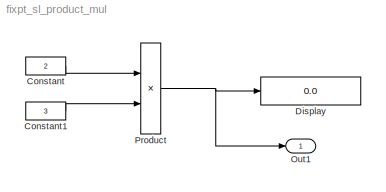
MODEL fixpt_sl_product_mul
KIND model
BLOCK [Constant] Constant
  AttributesFormatString = DataType = %<OutDataTypeStr>
  OutDataTypeStr = fixdt(1,8,1)
  SID = 1
  SampleTime = -1
  Value = 2
BLOCK [Constant] Constant1
  AttributesFormatString = DataType = %<OutDataTypeStr>
  OutDataTypeStr = fixdt(1,8,2)
  SID = 2
  SampleTime = -1
  Value = 3
BLOCK [Display] Display
  AttributesFormatString = Format = %<Format>
  Decimation = 1
  Lockdown = off
  Ports = [1]
  SID = 3
BLOCK [Outport] Out1
  IconDisplay = Port number
  SID = 5
BLOCK [Product] Product
  InputSameDT = off
  OutDataTypeStr = Inherit: Inherit via internal rule
  Ports = [2, 1]
  RndMeth = Nearest
  SID = 4
  SaturateOnIntegerOverflow = off
LINE Constant1:1 -> Product:2
LINE Constant:1 -> Product:1
NET Product:1 -> Display:1, Out1:1
note: NET lines group one-source signal fan-out (src -> all destinations, sorted); 1:1 wires keep LINE
